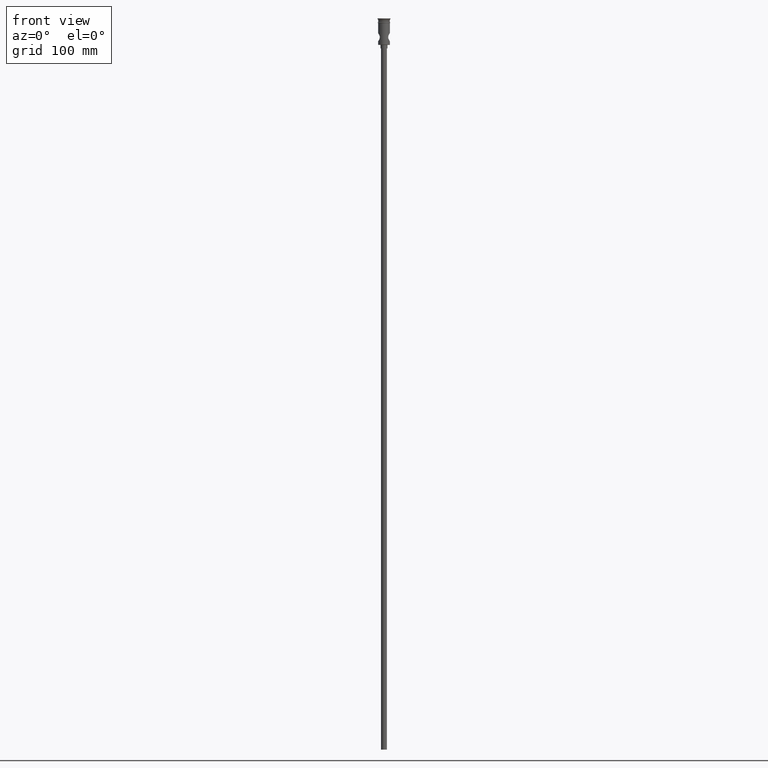
[diagram: clean part render]
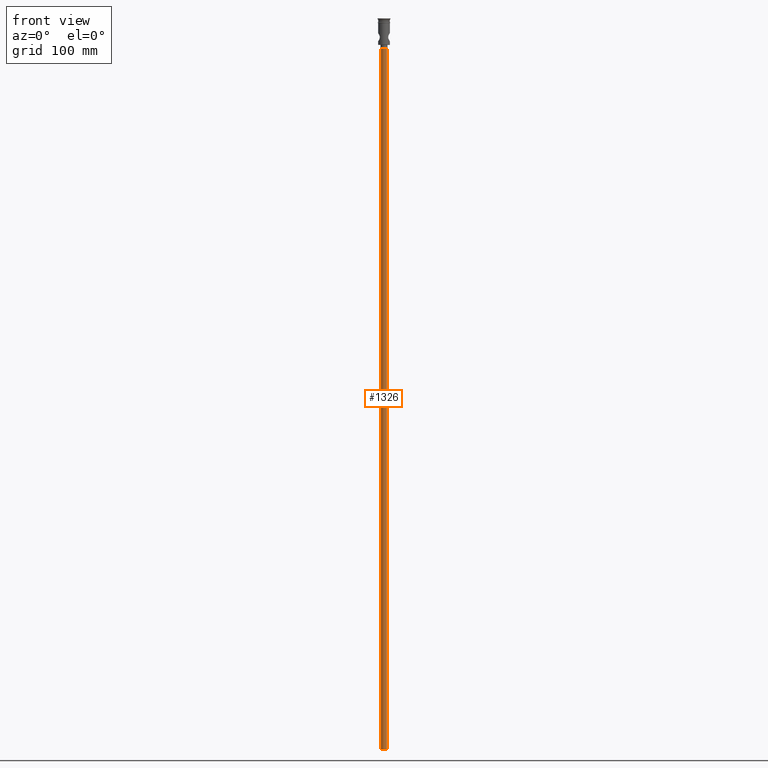
[diagram: same view with one face highlighted and labeled with its STEP entity id]
A machine part, front view. The second image highlights one B-rep face of the part: STEP entity #1326.
In plain terms, the highlighted cylindrical surface (edge-blend (fillet) strip) has radius 2.5 mm, axis along (-0, -0, 1).
Its self-contained STEP definition (entity closure, byte-faithful):
#7 = VERTEX_POINT ( 'NONE', #707 ) ;
#12 = ORIENTED_EDGE ( 'NONE', *, *, #423, .F. ) ;
#14 = CARTESIAN_POINT ( 'NONE',  ( 2.500000000000000000, 0.000000000000000000, -622.4999999999998863 ) ) ;
#28 = DIRECTION ( 'NONE',  ( -0.000000000000000000, -0.000000000000000000, 1.000000000000000000 ) ) ;
#108 = VECTOR ( 'NONE', #550, 1000.000000000000000 ) ;
#188 = EDGE_CURVE ( 'NONE', #822, #1217, #1102, .T. ) ;
#300 = CARTESIAN_POINT ( 'NONE',  ( 0.000000000000000000, 0.000000000000000000, -25.50000000000000000 ) ) ;
#356 = CARTESIAN_POINT ( 'NONE',  ( 2.500000000000000000, 0.000000000000000000, -25.50000000000000000 ) ) ;
#393 = AXIS2_PLACEMENT_3D ( 'NONE', #992, #765, #1450 ) ;
#400 = ORIENTED_EDGE ( 'NONE', *, *, #188, .T. ) ;
#423 = EDGE_CURVE ( 'NONE', #822, #601, #1026, .T. ) ;
#434 = CARTESIAN_POINT ( 'NONE',  ( 2.500000000000000000, 0.000000000000000000, -622.4999999999998863 ) ) ;
#545 = CIRCLE ( 'NONE', #1433, 2.500000000000000000 ) ;
#550 = DIRECTION ( 'NONE',  ( -0.000000000000000000, -0.000000000000000000, 1.000000000000000000 ) ) ;
#565 = EDGE_CURVE ( 'NONE', #601, #7, #1135, .T. ) ;
#567 = CARTESIAN_POINT ( 'NONE',  ( 0.000000000000000000, 0.000000000000000000, -622.4999999999998863 ) ) ;
#577 = DIRECTION ( 'NONE',  ( 0.000000000000000000, 0.000000000000000000, -1.000000000000000000 ) ) ;
#579 = CYLINDRICAL_SURFACE ( 'NONE', #641, 2.500000000000000000 ) ;
#601 = VERTEX_POINT ( 'NONE', #1404 ) ;
#610 = DIRECTION ( 'NONE',  ( 1.000000000000000000, 0.000000000000000000, 0.000000000000000000 ) ) ;
#641 = AXIS2_PLACEMENT_3D ( 'NONE', #567, #1236, #610 ) ;
#707 = CARTESIAN_POINT ( 'NONE',  ( -2.500000000000000000, 3.061616997868383141E-16, -25.50000000000000000 ) ) ;
#765 = DIRECTION ( 'NONE',  ( 0.000000000000000000, 0.000000000000000000, -1.000000000000000000 ) ) ;
#822 = VERTEX_POINT ( 'NONE', #14 ) ;
#907 = CARTESIAN_POINT ( 'NONE',  ( -2.500000000000000000, 3.061616997868383141E-16, -622.4999999999998863 ) ) ;
#992 = CARTESIAN_POINT ( 'NONE',  ( 0.000000000000000000, 0.000000000000000000, -622.4999999999998863 ) ) ;
#1026 = CIRCLE ( 'NONE', #393, 2.500000000000000000 ) ;
#1030 = EDGE_CURVE ( 'NONE', #1217, #7, #545, .T. ) ;
#1102 = LINE ( 'NONE', #434, #108 ) ;
#1104 = ORIENTED_EDGE ( 'NONE', *, *, #565, .F. ) ;
#1123 = EDGE_LOOP ( 'NONE', ( #1104, #12, #400, #1159 ) ) ;
#1129 = FACE_OUTER_BOUND ( 'NONE', #1123, .T. ) ;
#1135 = LINE ( 'NONE', #907, #1312 ) ;
#1159 = ORIENTED_EDGE ( 'NONE', *, *, #1030, .T. ) ;
#1217 = VERTEX_POINT ( 'NONE', #356 ) ;
#1236 = DIRECTION ( 'NONE',  ( -0.000000000000000000, -0.000000000000000000, 1.000000000000000000 ) ) ;
#1302 = DIRECTION ( 'NONE',  ( -1.000000000000000000, 0.000000000000000000, 0.000000000000000000 ) ) ;
#1312 = VECTOR ( 'NONE', #28, 1000.000000000000000 ) ;
#1326 = ADVANCED_FACE ( 'NONE', ( #1129 ), #579, .T. ) ;
#1404 = CARTESIAN_POINT ( 'NONE',  ( -2.500000000000000000, 3.061616997868383141E-16, -622.4999999999998863 ) ) ;
#1433 = AXIS2_PLACEMENT_3D ( 'NONE', #300, #577, #1302 ) ;
#1450 = DIRECTION ( 'NONE',  ( -1.000000000000000000, 0.000000000000000000, 0.000000000000000000 ) ) ;